MODEL slx_08d0c86024e4
KIND model
CONFIG AbsTol = auto
CONFIG EnableMultiTasking = off
CONFIG FixedStep = auto
CONFIG MaxStep = auto
CONFIG MinStep = auto
CONFIG RelTol = 1e-3
CONFIG SampleTimeConstraint = Unconstrained
CONFIG SolverName = VariableStepAuto
CONFIG StartTime = 0.0
CONFIG StopTime = 16
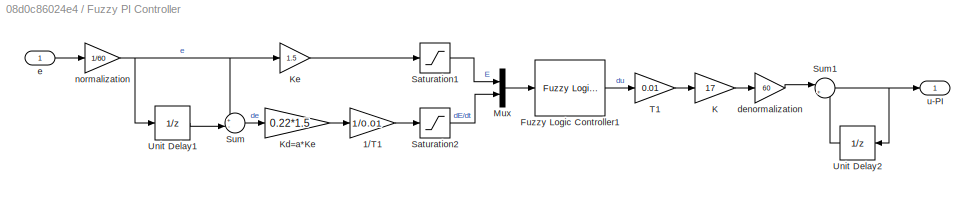
BLOCK [SubSystem] Fuzzy PI Controller
  Ports = [1, 1]
  RequestExecContextInheritance = off
BLOCK [Gain] Fuzzy PI Controller/1//T1
  Gain = 1/0.01
BLOCK [Reference] Fuzzy PI Controller/Fuzzy Logic Controller1  REF=fuzblock/Fuzzy Logic   (lib defined in mdl_858b3b3e7478)
Controller
  Ports = [1, 1]
  SourceBlock = fuzblock/Fuzzy Logic \nController
  SourceProductBaseCode = FL
  SourceType = Fuzzy Inference System
BLOCK [Gain] Fuzzy PI Controller/K
  Gain = 17
BLOCK [Gain] Fuzzy PI Controller/Kd=a*Ke
  Gain = 0.22*1.5
BLOCK [Gain] Fuzzy PI Controller/Ke
  Gain = 1.5
BLOCK [Mux] Fuzzy PI Controller/Mux
  DisplayOption = bar
  Inputs = 2
  Ports = [2, 1]
BLOCK [Saturate] Fuzzy PI Controller/Saturation1
  LowerLimit = -1
  UpperLimit = 1
BLOCK [Saturate] Fuzzy PI Controller/Saturation2
  LowerLimit = -1
  UpperLimit = 1
BLOCK [Sum] Fuzzy PI Controller/Sum
  Inputs = +-|
  Ports = [2, 1]
BLOCK [Sum] Fuzzy PI Controller/Sum1
  Inputs = |++
  Ports = [2, 1]
BLOCK [Gain] Fuzzy PI Controller/T1
  Gain = 0.01
BLOCK [UnitDelay] Fuzzy PI Controller/Unit Delay1
  HasFrameUpgradeWarning = on
  SampleTime = -1
BLOCK [UnitDelay] Fuzzy PI Controller/Unit Delay2
  HasFrameUpgradeWarning = on
  SampleTime = -1
BLOCK [Gain] Fuzzy PI Controller/denormalization
  Gain = 60
BLOCK [Inport] Fuzzy PI Controller/e
BLOCK [Gain] Fuzzy PI Controller/normalization
  Gain = 1/60
BLOCK [Outport] Fuzzy PI Controller/u-PI
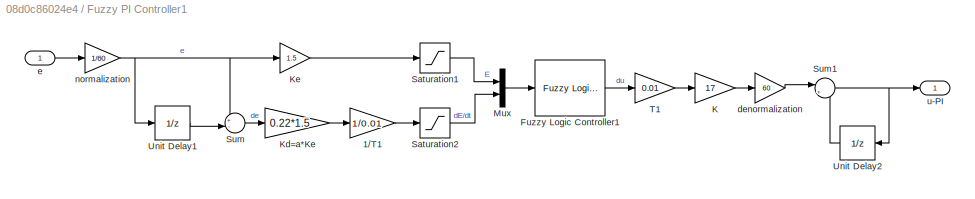
BLOCK [SubSystem] Fuzzy PI Controller1
  Ports = [1, 1]
  RequestExecContextInheritance = off
BLOCK [Gain] Fuzzy PI Controller1/1//T1
  Gain = 1/0.01
BLOCK [Reference] Fuzzy PI Controller1/Fuzzy Logic Controller1  REF=fuzblock/Fuzzy Logic   (lib defined in mdl_858b3b3e7478)
Controller
  Ports = [1, 1]
  SourceBlock = fuzblock/Fuzzy Logic \nController
  SourceProductBaseCode = FL
  SourceType = Fuzzy Inference System
BLOCK [Gain] Fuzzy PI Controller1/K
  Gain = 17
BLOCK [Gain] Fuzzy PI Controller1/Kd=a*Ke
  Gain = 0.22*1.5
BLOCK [Gain] Fuzzy PI Controller1/Ke
  Gain = 1.5
BLOCK [Mux] Fuzzy PI Controller1/Mux
  DisplayOption = bar
  Inputs = 2
  Ports = [2, 1]
BLOCK [Saturate] Fuzzy PI Controller1/Saturation1
  LowerLimit = -1
  UpperLimit = 1
BLOCK [Saturate] Fuzzy PI Controller1/Saturation2
  LowerLimit = -1
  UpperLimit = 1
BLOCK [Sum] Fuzzy PI Controller1/Sum
  Inputs = +-|
  Ports = [2, 1]
BLOCK [Sum] Fuzzy PI Controller1/Sum1
  Inputs = |++
  Ports = [2, 1]
BLOCK [Gain] Fuzzy PI Controller1/T1
  Gain = 0.01
BLOCK [UnitDelay] Fuzzy PI Controller1/Unit Delay1
  HasFrameUpgradeWarning = on
  SampleTime = -1
BLOCK [UnitDelay] Fuzzy PI Controller1/Unit Delay2
  HasFrameUpgradeWarning = on
  SampleTime = -1
BLOCK [Gain] Fuzzy PI Controller1/denormalization
  Gain = 60
BLOCK [Inport] Fuzzy PI Controller1/e
BLOCK [Gain] Fuzzy PI Controller1/normalization
  Gain = 1/60
BLOCK [Outport] Fuzzy PI Controller1/u-PI
BLOCK [Mux] Mux
  DisplayOption = bar
  Inputs = 3
  Ports = [3, 1]
BLOCK [Mux] Mux1
  DisplayOption = bar
  Inputs = 3
  Ports = [3, 1]
BLOCK [Reference] PID Controller  REF=pid_lib/PID Controller
  Ports = [1, 1]
  SourceBlock = pid_lib/PID Controller
  SourceProductBaseCode = SL
  SourceType = PID 1dof
BLOCK [Reference] PID Controller1  REF=pid_lib/PID Controller
  Ports = [1, 1]
  SourceBlock = pid_lib/PID Controller
  SourceProductBaseCode = SL
  SourceType = PID 1dof
BLOCK [Scope] Scope
  Floating = off
  NumInputPorts = 2
  Ports = [2]
  ScopeSpecificationString = Simulink.scopes.TimeScopeBlockCfg('CurrentConfiguration', extmgr.ConfigurationSet(extmgr.Configuration('Core','General UI',true,'DisplayFullSourceName',true),extmgr.Configuration('Core','Source UI',true),extmgr.Configuration('Sources','WiredSimulink',true),extmgr.Configuration('Visuals','Time Domain',true,'TimeAxisLabels','All','SerializedDisplays',{struct('MinYLimReal','-7.96625','MaxYLimReal','7...<+2661ch>
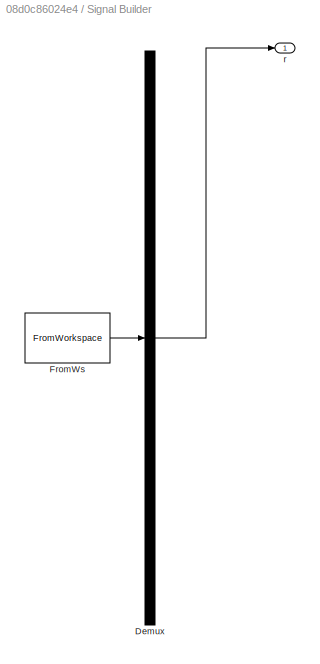
BLOCK [SubSystem] Signal Builder
  ClipboardFcn = sigbuilder_block('clipboard');
  CloseFcn = sigbuilder_block('close');
  ContinueFcn = sigbuilder_block('continue');
  CopyFcn = sigbuilder_block('copy');
  DeleteFcn = sigbuilder_block('delete');
  LoadFcn = sigbuilder_block('load');
  MaskHideContents = on
  ModelCloseFcn = sigbuilder_block('modelClose');
  NameChangeFcn = sigbuilder_block('namechange');
  OpenFcn = sigbuilder_block('open',[831 160.5 550.5 399.75 ]);
  PauseFcn = sigbuilder_block('pause');
  Ports = [0, 1]
  PreSaveFcn = sigbuilder_block('preSave');
  RequestExecContextInheritance = off
  StartFcn = sigbuilder_block('start');
  StopFcn = sigbuilder_block('stop');
  Tag = STV Subsys
BLOCK [Demux] Signal Builder/Demux
  DisplayOption = none
  Outputs = 1
  Ports = [1, 1]
  Tag = STV Demux
BLOCK [FromWorkspace] Signal Builder/FromWs
  Tag = STV FromWs
  VariableName = tuvar
BLOCK [Outport] Signal Builder/r
  Tag = STV Outport
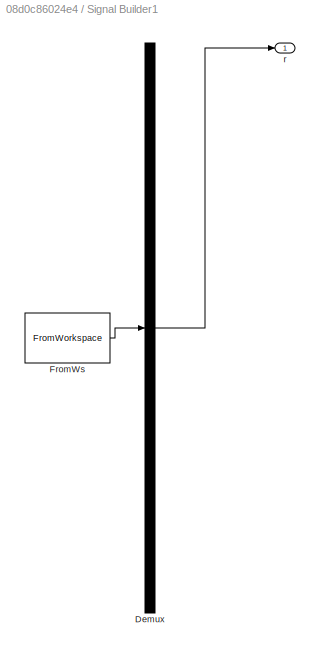
BLOCK [SubSystem] Signal Builder1
  ClipboardFcn = sigbuilder_block('clipboard');
  CloseFcn = sigbuilder_block('close');
  ContinueFcn = sigbuilder_block('continue');
  CopyFcn = sigbuilder_block('copy');
  DeleteFcn = sigbuilder_block('delete');
  LoadFcn = sigbuilder_block('load');
  MaskHideContents = on
  ModelCloseFcn = sigbuilder_block('modelClose');
  NameChangeFcn = sigbuilder_block('namechange');
  OpenFcn = sigbuilder_block('open',[780 210 550.5 399.75 ]);
  PauseFcn = sigbuilder_block('pause');
  Ports = [0, 1]
  PreSaveFcn = sigbuilder_block('preSave');
  RequestExecContextInheritance = off
  StartFcn = sigbuilder_block('start');
  StopFcn = sigbuilder_block('stop');
  Tag = STV Subsys
BLOCK [Demux] Signal Builder1/Demux
  DisplayOption = none
  Outputs = 1
  Ports = [1, 1]
  Tag = STV Demux
BLOCK [FromWorkspace] Signal Builder1/FromWs
  Tag = STV FromWs
  VariableName = tuvar
BLOCK [Outport] Signal Builder1/r
  Tag = STV Outport
BLOCK [Sum] Sum
  Inputs = |+-
  Ports = [2, 1]
BLOCK [Sum] Sum1
  Inputs = |+-
  Ports = [2, 1]
BLOCK [Sum] Sum2
  Inputs = |+-
  Ports = [2, 1]
BLOCK [Sum] Sum3
  Inputs = |+-
  Ports = [2, 1]
BLOCK [TransferFcn] System
  Denominator = [1 10 9]
  Numerator = [10]
BLOCK [TransferFcn] System1
  Denominator = [1 10 9]
  Numerator = [10]
BLOCK [TransferFcn] System2
  Denominator = [1 10 9]
  Numerator = [10]
BLOCK [TransferFcn] System3
  Denominator = [1 10 9]
  Numerator = [10]
BLOCK [ZeroOrderHold] Zero-Order Hold
  SampleTime = 0.01
BLOCK [ZeroOrderHold] Zero-Order Hold1
  SampleTime = -1
BLOCK [ZeroOrderHold] Zero-Order Hold2
  SampleTime = 0.01
BLOCK [ZeroOrderHold] Zero-Order Hold3
  SampleTime = -1
ANNOTATION (root): Computational Intelligence Task 1 Anastasios Gramemnos 9212 <email> March 2022
ANNOTATION (root): control input
LINE Fuzzy PI Controller/1//T1:1 -> Fuzzy PI Controller/Saturation2:1
LINE Fuzzy PI Controller/Fuzzy Logic Controller1:1 -> Fuzzy PI Controller/T1:1
LINE Fuzzy PI Controller/K:1 -> Fuzzy PI Controller/denormalization:1
LINE Fuzzy PI Controller/Kd=a*Ke:1 -> Fuzzy PI Controller/1//T1:1
LINE Fuzzy PI Controller/Ke:1 -> Fuzzy PI Controller/Saturation1:1
LINE Fuzzy PI Controller/Mux:1 -> Fuzzy PI Controller/Fuzzy Logic Controller1:1
LINE Fuzzy PI Controller/Saturation1:1 -> Fuzzy PI Controller/Mux:1
LINE Fuzzy PI Controller/Saturation2:1 -> Fuzzy PI Controller/Mux:2
NET Fuzzy PI Controller/Sum1:1 -> Fuzzy PI Controller/Unit Delay2:1, Fuzzy PI Controller/u-PI:1
LINE Fuzzy PI Controller/Sum:1 -> Fuzzy PI Controller/Kd=a*Ke:1
LINE Fuzzy PI Controller/T1:1 -> Fuzzy PI Controller/K:1
LINE Fuzzy PI Controller/Unit Delay1:1 -> Fuzzy PI Controller/Sum:2
LINE Fuzzy PI Controller/Unit Delay2:1 -> Fuzzy PI Controller/Sum1:2
LINE Fuzzy PI Controller/denormalization:1 -> Fuzzy PI Controller/Sum1:1
LINE Fuzzy PI Controller/e:1 -> Fuzzy PI Controller/normalization:1
NET Fuzzy PI Controller/normalization:1 -> Fuzzy PI Controller/Ke:1, Fuzzy PI Controller/Sum:1, Fuzzy PI Controller/Unit Delay1:1
LINE Fuzzy PI Controller1/1//T1:1 -> Fuzzy PI Controller1/Saturation2:1
LINE Fuzzy PI Controller1/Fuzzy Logic Controller1:1 -> Fuzzy PI Controller1/T1:1
LINE Fuzzy PI Controller1/K:1 -> Fuzzy PI Controller1/denormalization:1
LINE Fuzzy PI Controller1/Kd=a*Ke:1 -> Fuzzy PI Controller1/1//T1:1
LINE Fuzzy PI Controller1/Ke:1 -> Fuzzy PI Controller1/Saturation1:1
LINE Fuzzy PI Controller1/Mux:1 -> Fuzzy PI Controller1/Fuzzy Logic Controller1:1
LINE Fuzzy PI Controller1/Saturation1:1 -> Fuzzy PI Controller1/Mux:1
LINE Fuzzy PI Controller1/Saturation2:1 -> Fuzzy PI Controller1/Mux:2
NET Fuzzy PI Controller1/Sum1:1 -> Fuzzy PI Controller1/Unit Delay2:1, Fuzzy PI Controller1/u-PI:1
LINE Fuzzy PI Controller1/Sum:1 -> Fuzzy PI Controller1/Kd=a*Ke:1
LINE Fuzzy PI Controller1/T1:1 -> Fuzzy PI Controller1/K:1
LINE Fuzzy PI Controller1/Unit Delay1:1 -> Fuzzy PI Controller1/Sum:2
LINE Fuzzy PI Controller1/Unit Delay2:1 -> Fuzzy PI Controller1/Sum1:2
LINE Fuzzy PI Controller1/denormalization:1 -> Fuzzy PI Controller1/Sum1:1
LINE Fuzzy PI Controller1/e:1 -> Fuzzy PI Controller1/normalization:1
NET Fuzzy PI Controller1/normalization:1 -> Fuzzy PI Controller1/Ke:1, Fuzzy PI Controller1/Sum:1, Fuzzy PI Controller1/Unit Delay1:1
LINE Fuzzy PI Controller1:1 -> Zero-Order Hold2:1
LINE Fuzzy PI Controller:1 -> Zero-Order Hold:1
LINE Mux1:1 -> Scope:2
LINE Mux:1 -> Scope:1
LINE PID Controller1:1 -> Zero-Order Hold3:1
LINE PID Controller:1 -> Zero-Order Hold1:1
NET Signal Builder1:1 -> Mux1:1, Sum2:1, Sum3:1
NET Signal Builder:1 -> Mux:1, Sum1:1, Sum:1
LINE Sum1:1 -> PID Controller:1
LINE Sum2:1 -> Fuzzy PI Controller1:1
LINE Sum3:1 -> PID Controller1:1
LINE Sum:1 -> Fuzzy PI Controller:1
NET System1:1 -> Mux:3, Sum1:2
NET System2:1 -> Mux1:2, Sum2:2
NET System3:1 -> Mux1:3, Sum3:2
NET System:1 -> Mux:2, Sum:2
LINE Zero-Order Hold1:1 -> System1:1
LINE Zero-Order Hold2:1 -> System2:1
LINE Zero-Order Hold3:1 -> System3:1
LINE Zero-Order Hold:1 -> System:1
note: NET lines group one-source signal fan-out (src -> all destinations, sorted); 1:1 wires keep LINE
